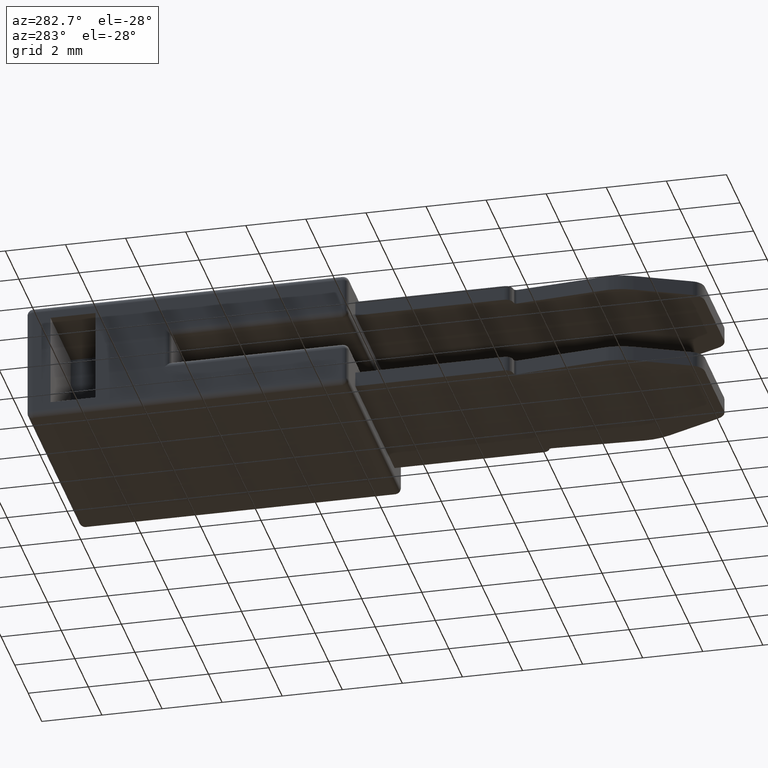
[diagram: clean part render]
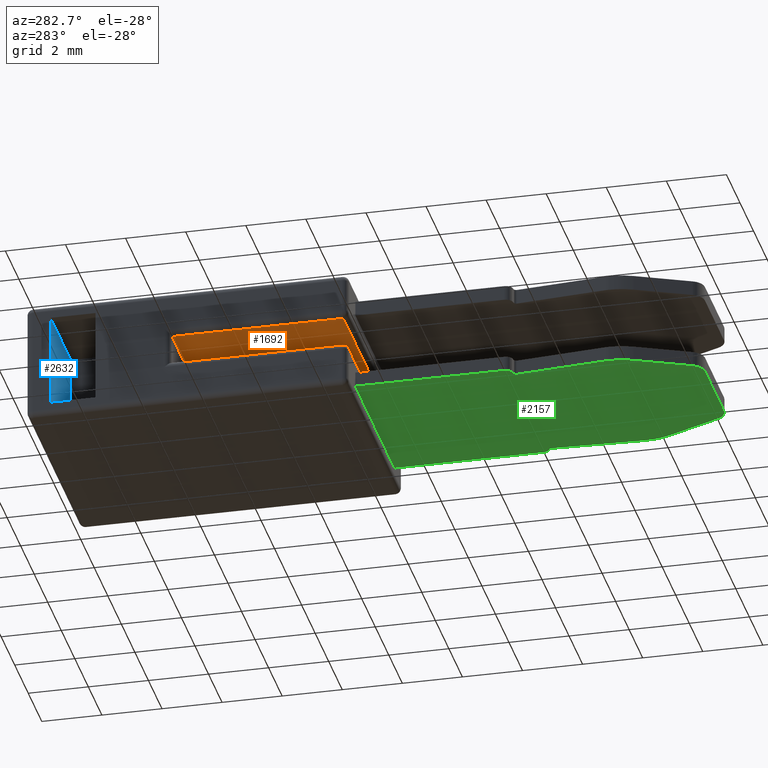
[diagram: same view with three faces highlighted in distinct colors, each labeled with its STEP entity id]
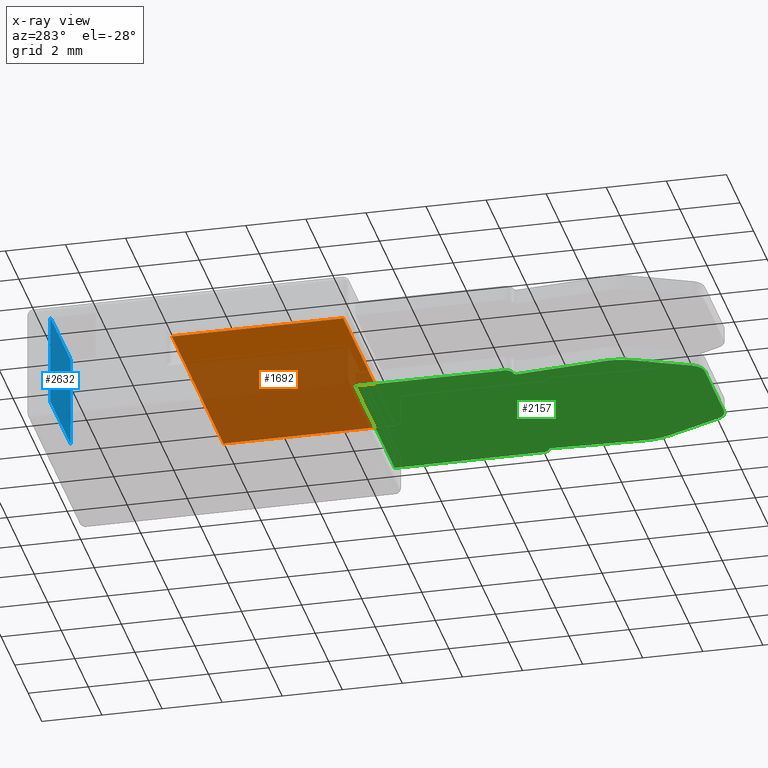
[diagram: x-ray of the same camera — body ghosted, the three highlighted faces saturated]
A machine part, auxiliary view with three faces highlighted in distinct colors.
The next image is the same camera in x-ray (body ghosted, the three faces saturated) — at least one of them is partly hidden behind the body in this view.
Their STEP definitions:

[orange] entity #1692 — the highlighted planar face has unit normal (0, 0, -1).
#43=DIRECTION('',(-1.070264345126E-10,-1.E0,-5.350836733468E-11));
#44=VECTOR('',#43,5.699999999249E0);
#45=CARTESIAN_POINT('',(-3.799999997945E0,7.204499866279E0,4.999999994918E-1));
#46=LINE('',#45,#44);
#66=DIRECTION('',(1.E0,1.244574619107E-11,0.E0));
#67=VECTOR('',#66,7.599999998140E0);
#68=CARTESIAN_POINT('',(-3.799999998555E0,1.504499867030E0,4.999999991868E-1));
#69=LINE('',#68,#67);
#229=DIRECTION('',(-1.E0,0.E0,0.E0));
#230=VECTOR('',#229,7.599999996920E0);
#231=CARTESIAN_POINT('',(3.799999998975E0,7.204499866279E0,4.999999994918E-1));
#232=LINE('',#231,#230);
#255=CARTESIAN_POINT('',(3.799999998975E0,7.204499866279E0,4.999999994918E-1));
#269=DIRECTION('',(-1.070265903352E-10,1.E0,5.350835759677E-11));
#270=VECTOR('',#269,5.699999999154E0);
#271=CARTESIAN_POINT('',(3.799999999585E0,1.504499867125E0,4.999999991868E-1));
#272=LINE('',#271,#270);
#1088=CARTESIAN_POINT('',(-3.799999998555E0,1.504499867030E0,
4.999999991868E-1));
#1089=CARTESIAN_POINT('',(3.799999999585E0,1.504499867125E0,4.999999991868E-1));
#1090=VERTEX_POINT('',#1088);
#1091=VERTEX_POINT('',#1089);
#1196=VERTEX_POINT('',#255);
#1232=CARTESIAN_POINT('',(-3.799999997945E0,7.204499866279E0,
4.999999994918E-1));
#1233=VERTEX_POINT('',#1232);
#1681=CARTESIAN_POINT('',(-3.999999997945E0,1.504499866761E0,
4.999999994918E-1));
#1682=DIRECTION('',(0.E0,0.E0,-1.E0));
#1683=DIRECTION('',(-1.E0,0.E0,0.E0));
#1684=AXIS2_PLACEMENT_3D('',#1681,#1682,#1683);
#1685=PLANE('',#1684);
#1686=ORIENTED_EDGE('',*,*,#1373,.T.);
#1687=ORIENTED_EDGE('',*,*,#1672,.T.);
#1688=ORIENTED_EDGE('',*,*,#1646,.T.);
#1689=ORIENTED_EDGE('',*,*,#1346,.T.);
#1690=EDGE_LOOP('',(#1686,#1687,#1688,#1689));
#1691=FACE_OUTER_BOUND('',#1690,.F.);
#1692=ADVANCED_FACE('',(#1691),#1685,.T.);
#1346=EDGE_CURVE('',#1233,#1090,#46,.T.);
#1373=EDGE_CURVE('',#1090,#1091,#69,.T.);
#1646=EDGE_CURVE('',#1196,#1233,#232,.T.);
#1672=EDGE_CURVE('',#1091,#1196,#272,.T.);

[blue] entity #2632 — the highlighted planar face has unit normal (0, 1, 0).
#1=DIRECTION('',(0.E0,0.E0,1.E0));
#2=VECTOR('',#1,3.1E0);
#3=CARTESIAN_POINT('',(-3.999999997945E0,1.120449986875E1,-1.550000001773E0));
#4=LINE('',#3,#2);
#1003=DIRECTION('',(0.E0,0.E0,1.E0));
#1004=VECTOR('',#1003,3.1E0);
#1005=CARTESIAN_POINT('',(-9.999999979452E-1,1.120449986875E1,
-1.550000001773E0));
#1006=LINE('',#1005,#1004);
#1007=DIRECTION('',(1.E0,0.E0,0.E0));
#1008=VECTOR('',#1007,3.E0);
#1009=CARTESIAN_POINT('',(-3.999999997945E0,1.120449986875E1,
-1.550000001773E0));
#1010=LINE('',#1009,#1008);
#1015=DIRECTION('',(1.E0,0.E0,0.E0));
#1016=VECTOR('',#1015,3.E0);
#1017=CARTESIAN_POINT('',(-3.999999997945E0,1.120449986875E1,1.549999998227E0));
#1018=LINE('',#1017,#1016);
#1131=CARTESIAN_POINT('',(-3.999999997945E0,1.120449986875E1,
-1.550000001773E0));
#1132=CARTESIAN_POINT('',(-3.999999997945E0,1.120449986875E1,1.549999998227E0));
#1133=VERTEX_POINT('',#1131);
#1134=VERTEX_POINT('',#1132);
#1185=CARTESIAN_POINT('',(-9.999999979452E-1,1.120449986875E1,
-1.550000001773E0));
#1186=CARTESIAN_POINT('',(-9.999999979452E-1,1.120449986875E1,
1.549999998227E0));
#1187=VERTEX_POINT('',#1185);
#1188=VERTEX_POINT('',#1186);
#2618=CARTESIAN_POINT('',(-9.999999979452E-1,1.120449986875E1,
-1.550000001773E0));
#2619=DIRECTION('',(0.E0,1.E0,0.E0));
#2620=DIRECTION('',(0.E0,0.E0,1.E0));
#2621=AXIS2_PLACEMENT_3D('',#2618,#2619,#2620);
#2622=PLANE('',#2621);
#2623=ORIENTED_EDGE('',*,*,#1311,.T.);
#2625=ORIENTED_EDGE('',*,*,#2624,.T.);
#2627=ORIENTED_EDGE('',*,*,#2626,.F.);
#2629=ORIENTED_EDGE('',*,*,#2628,.F.);
#2630=EDGE_LOOP('',(#2623,#2625,#2627,#2629));
#2631=FACE_OUTER_BOUND('',#2630,.F.);
#2632=ADVANCED_FACE('',(#2631),#2622,.F.);
#1311=EDGE_CURVE('',#1133,#1134,#4,.T.);
#2624=EDGE_CURVE('',#1134,#1188,#1018,.T.);
#2626=EDGE_CURVE('',#1187,#1188,#1006,.T.);
#2628=EDGE_CURVE('',#1133,#1187,#1010,.T.);

[green] entity #2157 — the highlighted planar face has unit normal (0, 0, -1).
#190=DIRECTION('',(-1.E0,0.E0,0.E0));
#191=VECTOR('',#190,5.800385284733E0);
#192=CARTESIAN_POINT('',(2.900213329696E0,1.304499869248E0,-1.550000002612E0));
#193=LINE('',#192,#191);
#581=DIRECTION('',(-4.019265193148E-1,-9.156719243656E-1,0.E0));
#582=VECTOR('',#581,1.955320206015E0);
#583=CARTESIAN_POINT('',(2.658019899735E0,-7.906031575702E0,-1.550000002612E0));
#584=LINE('',#583,#582);
#605=DIRECTION('',(-4.019265182246E-1,9.156719248442E-1,0.E0));
#606=VECTOR('',#605,1.955320204561E0);
#607=CARTESIAN_POINT('',(-1.872022181118E0,-9.696463391183E0,
-1.550000002612E0));
#608=LINE('',#607,#606);
#609=CARTESIAN_POINT('',(-1.414186218043E0,-9.495500131667E0,
-1.550000002612E0));
#610=DIRECTION('',(0.E0,0.E0,1.E0));
#611=DIRECTION('',(-9.156719245857E-1,-4.019265188134E-1,0.E0));
#612=AXIS2_PLACEMENT_3D('',#609,#610,#611);
#614=DIRECTION('',(1.E0,0.E0,0.E0));
#615=VECTOR('',#614,2.828475110205E0);
#616=CARTESIAN_POINT('',(-1.414186217999E0,-9.995500132427E0,
-1.550000002612E0));
#617=LINE('',#616,#615);
#618=CARTESIAN_POINT('',(1.414288892207E0,-9.495500131606E0,-1.550000002612E0));
#619=DIRECTION('',(0.E0,0.E0,1.E0));
#620=DIRECTION('',(-1.775468658066E-12,-1.E0,0.E0));
#621=AXIS2_PLACEMENT_3D('',#618,#619,#620);
#623=CARTESIAN_POINT('',(8.266760488221E-1,-7.102178539754E0,
-1.550000002612E0));
#624=DIRECTION('',(0.E0,0.E0,1.E0));
#625=DIRECTION('',(9.156719250353E-1,-4.019265177891E-1,0.E0));
#626=AXIS2_PLACEMENT_3D('',#623,#624,#625);
#628=DIRECTION('',(4.405476908482E-2,-9.990291173539E-1,0.E0));
#629=VECTOR('',#628,3.027729383350E0);
#630=CARTESIAN_POINT('',(2.690457209533E0,-3.970976038841E0,-1.550000002612E0));
#631=LINE('',#630,#629);
#632=CARTESIAN_POINT('',(2.790360122034E0,-3.966570564314E0,-1.550000002612E0));
#633=DIRECTION('',(0.E0,0.E0,1.E0));
#634=DIRECTION('',(-1.E0,0.E0,0.E0));
#635=AXIS2_PLACEMENT_3D('',#632,#633,#634);
#637=CARTESIAN_POINT('',(2.750050496727E0,-3.875194609393E0,-1.550000002612E0));
#638=CARTESIAN_POINT('',(2.738425986281E0,-3.880239390500E0,-1.550000002612E0));
#639=CARTESIAN_POINT('',(2.717074230225E0,-3.894817496214E0,-1.550000002612E0));
#640=CARTESIAN_POINT('',(2.695470294846E0,-3.928039064768E0,-1.550000002612E0));
#641=CARTESIAN_POINT('',(2.690360121374E0,-3.952992238718E0,-1.550000002612E0));
#642=CARTESIAN_POINT('',(2.690360121374E0,-3.966570564314E0,-1.550000002612E0));
#644=CARTESIAN_POINT('',(2.900885209625E0,-3.646249164768E0,-1.550000002612E0));
#645=CARTESIAN_POINT('',(2.900889530455E0,-3.670056105425E0,-1.550000002612E0));
#646=CARTESIAN_POINT('',(2.893895975699E0,-3.718181735322E0,-1.550000002612E0));
#647=CARTESIAN_POINT('',(2.863249112830E0,-3.784156210682E0,-1.550000002612E0));
#648=CARTESIAN_POINT('',(2.814989014917E0,-3.838620296299E0,-1.550000002612E0));
#649=CARTESIAN_POINT('',(2.774238470647E0,-3.864697562150E0,-1.550000002612E0));
#650=CARTESIAN_POINT('',(2.750050496727E0,-3.875194609393E0,-1.550000002612E0));
#652=CARTESIAN_POINT('',(-2.652157458377E0,-3.895419549719E0,
-1.550000002612E0));
#653=CARTESIAN_POINT('',(-2.678509454368E0,-3.895342007513E0,
-1.550000002612E0));
#654=CARTESIAN_POINT('',(-2.730078545240E0,-3.886943803411E0,
-1.550000002612E0));
#655=CARTESIAN_POINT('',(-2.800835547709E0,-3.850694832120E0,
-1.550000002612E0));
#656=CARTESIAN_POINT('',(-2.856550720227E0,-3.794778351006E0,
-1.550000002612E0));
#657=CARTESIAN_POINT('',(-2.892625204710E0,-3.724010353815E0,
-1.550000002612E0));
#658=CARTESIAN_POINT('',(-2.900783946439E0,-3.672197380025E0,
-1.550000002612E0));
#659=CARTESIAN_POINT('',(-2.900783946439E0,-3.646264539970E0,
-1.550000002612E0));
#661=CARTESIAN_POINT('',(-2.652157458377E0,-3.895419549719E0,
-1.550000002612E0));
#662=CARTESIAN_POINT('',(-2.641035623505E0,-3.895452276548E0,
-1.550000002612E0));
#663=CARTESIAN_POINT('',(-2.621325003900E0,-3.898525309523E0,
-1.550000002612E0));
#664=CARTESIAN_POINT('',(-2.590138359340E0,-3.914338049258E0,
-1.550000002612E0));
#665=CARTESIAN_POINT('',(-2.566948752463E0,-3.939293710889E0,
-1.550000002612E0));
#666=CARTESIAN_POINT('',(-2.553139140325E0,-3.970777977901E0,
-1.550000002612E0));
#667=CARTESIAN_POINT('',(-2.551309648257E0,-3.992891185001E0,
-1.550000002612E0));
#668=CARTESIAN_POINT('',(-2.552354504162E0,-4.004479876503E0,
-1.550000002612E0));
#670=DIRECTION('',(8.979743214584E-2,9.959600499920E-1,0.E0));
#671=VECTOR('',#670,3.040181849505E0);
#672=CARTESIAN_POINT('',(-2.825355027504E0,-7.032379543321E0,
-1.550000002612E0));
#673=LINE('',#672,#671);
#674=CARTESIAN_POINT('',(-8.265733737096E-1,-7.102178538749E0,
-1.550000002612E0));
#675=DIRECTION('',(0.E0,0.E0,-1.E0));
#676=DIRECTION('',(-1.E0,0.E0,0.E0));
#677=AXIS2_PLACEMENT_3D('',#674,#675,#676);
#679=CARTESIAN_POINT('',(-8.265733737096E-1,-7.102178538749E0,
-1.550000002612E0));
#680=DIRECTION('',(0.E0,0.E0,-1.E0));
#681=DIRECTION('',(-9.156719246999E-1,-4.019265185533E-1,0.E0));
#682=AXIS2_PLACEMENT_3D('',#679,#680,#681);
#716=DIRECTION('',(-1.357127818211E-4,9.999999907910E-1,0.E0));
#717=VECTOR('',#716,4.950749079608E0);
#718=CARTESIAN_POINT('',(2.900885209625E0,-3.646249164768E0,-1.550000002612E0));
#719=LINE('',#718,#717);
#728=DIRECTION('',(-1.236155362214E-4,-9.999999923596E-1,0.E0));
#729=VECTOR('',#728,4.950764447044E0);
#730=CARTESIAN_POINT('',(-2.900171955037E0,1.304499869248E0,-1.550000002612E0));
#731=LINE('',#730,#729);
#1061=CARTESIAN_POINT('',(2.690360121374E0,-3.966570564314E0,
-1.550000002612E0));
#1063=VERTEX_POINT('',#1061);
#1069=VERTEX_POINT('',#637);
#1078=CARTESIAN_POINT('',(2.690457209533E0,-3.970976038841E0,
-1.550000002612E0));
#1079=CARTESIAN_POINT('',(2.823843128368E0,-6.995765852275E0,
-1.550000002612E0));
#1080=VERTEX_POINT('',#1078);
#1081=VERTEX_POINT('',#1079);
#1082=CARTESIAN_POINT('',(2.900885209625E0,-3.646249164768E0,
-1.550000002612E0));
#1083=CARTESIAN_POINT('',(2.900213329696E0,1.304499869248E0,-1.550000002612E0));
#1084=VERTEX_POINT('',#1082);
#1085=VERTEX_POINT('',#1083);
#1092=CARTESIAN_POINT('',(-2.657917222951E0,-7.906031575786E0,
-1.550000002612E0));
#1094=VERTEX_POINT('',#1092);
#1106=CARTESIAN_POINT('',(-2.900171955037E0,1.304499869248E0,
-1.550000002612E0));
#1107=VERTEX_POINT('',#1106);
#1163=CARTESIAN_POINT('',(-2.552354504162E0,-4.004479876503E0,
-1.550000002612E0));
#1164=VERTEX_POINT('',#1163);
#1203=CARTESIAN_POINT('',(-2.900783946439E0,-3.646264539970E0,
-1.550000002612E0));
#1204=VERTEX_POINT('',#1203);
#1218=CARTESIAN_POINT('',(-2.825355027504E0,-7.032379543321E0,
-1.550000002612E0));
#1220=VERTEX_POINT('',#1218);
#1223=CARTESIAN_POINT('',(2.658019899735E0,-7.906031575702E0,
-1.550000002612E0));
#1224=VERTEX_POINT('',#1223);
#1236=CARTESIAN_POINT('',(-2.826573373537E0,-7.102178538749E0,
-1.550000002612E0));
#1237=VERTEX_POINT('',#1236);
#1253=VERTEX_POINT('',#652);
#1256=CARTESIAN_POINT('',(-1.414186217999E0,-9.995500132427E0,
-1.550000002612E0));
#1257=CARTESIAN_POINT('',(1.414288892207E0,-9.995500132427E0,
-1.550000002612E0));
#1258=VERTEX_POINT('',#1256);
#1259=VERTEX_POINT('',#1257);
#1260=CARTESIAN_POINT('',(-1.872022181031E0,-9.696463391380E0,
-1.550000002612E0));
#1261=VERTEX_POINT('',#1260);
#1262=CARTESIAN_POINT('',(1.872124855272E0,-9.696463391296E0,
-1.550000002612E0));
#1263=VERTEX_POINT('',#1262);
#2120=CARTESIAN_POINT('',(-3.999999997945E0,-8.995500132696E0,
-1.550000002612E0));
#2121=DIRECTION('',(0.E0,0.E0,-1.E0));
#2122=DIRECTION('',(-1.E0,0.E0,0.E0));
#2123=AXIS2_PLACEMENT_3D('',#2120,#2121,#2122);
#2124=PLANE('',#2123);
#2125=ORIENTED_EDGE('',*,*,#2113,.F.);
#2126=ORIENTED_EDGE('',*,*,#2101,.T.);
#2127=ORIENTED_EDGE('',*,*,#2087,.T.);
#2128=ORIENTED_EDGE('',*,*,#2073,.T.);
#2129=ORIENTED_EDGE('',*,*,#2059,.F.);
#2131=ORIENTED_EDGE('',*,*,#2130,.T.);
#2133=ORIENTED_EDGE('',*,*,#2132,.F.);
#2135=ORIENTED_EDGE('',*,*,#2134,.F.);
#2137=ORIENTED_EDGE('',*,*,#2136,.F.);
#2139=ORIENTED_EDGE('',*,*,#2138,.F.);
#2141=ORIENTED_EDGE('',*,*,#2140,.T.);
#2142=ORIENTED_EDGE('',*,*,#1573,.T.);
#2144=ORIENTED_EDGE('',*,*,#2143,.T.);
#2146=ORIENTED_EDGE('',*,*,#2145,.F.);
#2148=ORIENTED_EDGE('',*,*,#2147,.T.);
#2150=ORIENTED_EDGE('',*,*,#2149,.F.);
#2152=ORIENTED_EDGE('',*,*,#2151,.F.);
#2154=ORIENTED_EDGE('',*,*,#2153,.F.);
#2155=EDGE_LOOP('',(#2125,#2126,#2127,#2128,#2129,#2131,#2133,#2135,#2137,#2139,
#2141,#2142,#2144,#2146,#2148,#2150,#2152,#2154));
#2156=FACE_OUTER_BOUND('',#2155,.F.);
#2157=ADVANCED_FACE('',(#2156),#2124,.T.);
#613=CIRCLE('',#612,5.000000007599E-1);
#622=CIRCLE('',#621,5.000000008209E-1);
#627=CIRCLE('',#626,2.000000000919E0);
#636=CIRCLE('',#635,1.000000006601E-1);
#643=B_SPLINE_CURVE_WITH_KNOTS('',3,(#637,#638,#639,#640,#641,#642),
.UNSPECIFIED.,.F.,.F.,(4,1,1,4),(0.E0,3.333333333333E-1,6.666666666667E-1,1.E0),
.UNSPECIFIED.);
#651=B_SPLINE_CURVE_WITH_KNOTS('',3,(#644,#645,#646,#647,#648,#649,#650),
.UNSPECIFIED.,.F.,.F.,(4,1,1,1,4),(0.E0,2.5E-1,5.E-1,7.5E-1,1.E0),
.UNSPECIFIED.);
#660=B_SPLINE_CURVE_WITH_KNOTS('',3,(#652,#653,#654,#655,#656,#657,#658,#659),
.UNSPECIFIED.,.F.,.F.,(4,1,1,1,1,4),(0.E0,2.E-1,4.E-1,6.E-1,8.E-1,1.E0),
.UNSPECIFIED.);
#669=B_SPLINE_CURVE_WITH_KNOTS('',3,(#661,#662,#663,#664,#665,#666,#667,#668),
.UNSPECIFIED.,.F.,.F.,(4,1,1,1,1,4),(0.E0,2.E-1,4.E-1,6.E-1,8.E-1,1.E0),
.UNSPECIFIED.);
#678=CIRCLE('',#677,1.999999999827E0);
#683=CIRCLE('',#682,1.999999999827E0);
#1573=EDGE_CURVE('',#1085,#1107,#193,.T.);
#2059=EDGE_CURVE('',#1224,#1263,#584,.T.);
#2073=EDGE_CURVE('',#1259,#1263,#622,.T.);
#2087=EDGE_CURVE('',#1258,#1259,#617,.T.);
#2101=EDGE_CURVE('',#1261,#1258,#613,.T.);
#2113=EDGE_CURVE('',#1261,#1094,#608,.T.);
#2130=EDGE_CURVE('',#1224,#1081,#627,.T.);
#2132=EDGE_CURVE('',#1080,#1081,#631,.T.);
#2134=EDGE_CURVE('',#1063,#1080,#636,.T.);
#2136=EDGE_CURVE('',#1069,#1063,#643,.T.);
#2138=EDGE_CURVE('',#1084,#1069,#651,.T.);
#2140=EDGE_CURVE('',#1084,#1085,#719,.T.);
#2143=EDGE_CURVE('',#1107,#1204,#731,.T.);
#2145=EDGE_CURVE('',#1253,#1204,#660,.T.);
#2147=EDGE_CURVE('',#1253,#1164,#669,.T.);
#2149=EDGE_CURVE('',#1220,#1164,#673,.T.);
#2151=EDGE_CURVE('',#1237,#1220,#678,.T.);
#2153=EDGE_CURVE('',#1094,#1237,#683,.T.);